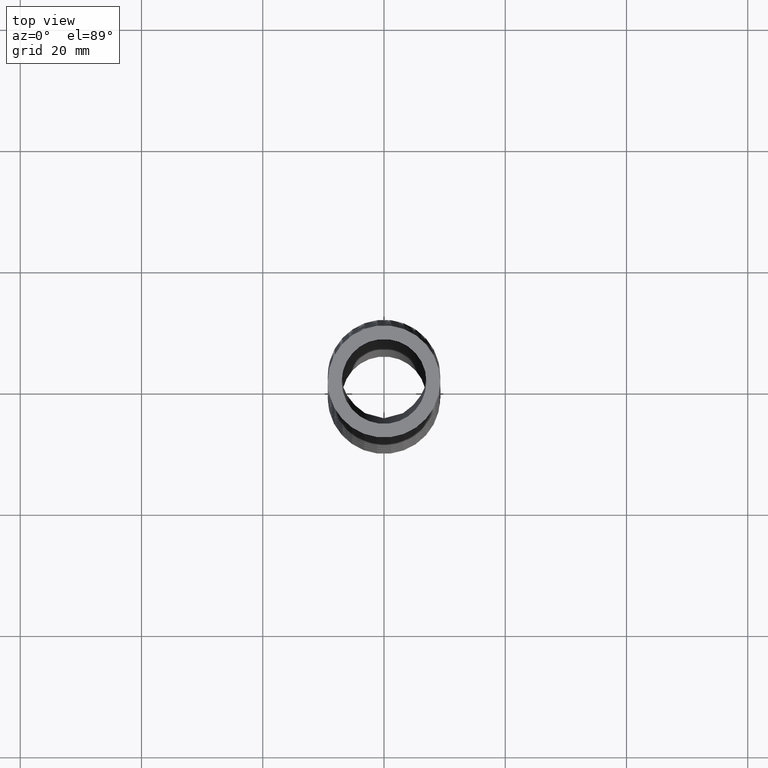
[diagram: clean part render]
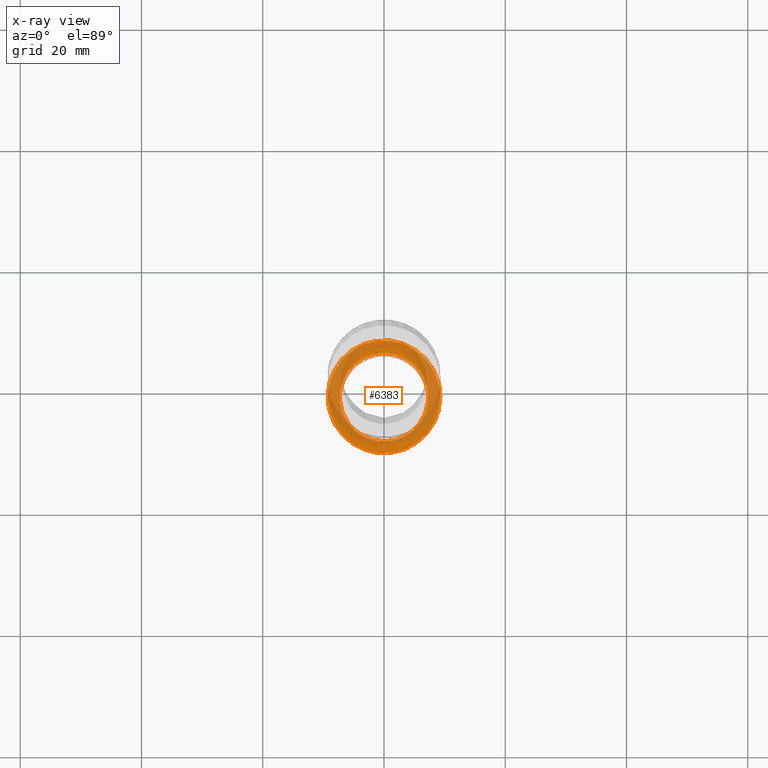
[diagram: x-ray — body ghosted, one internal face saturated and labeled with its STEP entity id]
A machine part, top view, then the same camera in x-ray: the body is ghosted and one INTERNAL B-rep face — a face not visible from any outside direction — is saturated and labeled: STEP entity #6383.
In plain terms, the highlighted planar face has unit normal (0, -0, 1).
Its self-contained STEP definition (entity closure, byte-faithful):
#79 = VERTEX_POINT ( 'NONE', #1841 ) ;
#81 = EDGE_CURVE ( 'NONE', #496, #79, #1840, .T. ) ;
#496 = VERTEX_POINT ( 'NONE', #4305 ) ;
#1836 = DIRECTION ( 'NONE',  ( 0.0000000000000000000, -1.000000000000000000, 0.0000000000000000000 ) ) ;
#1837 = DIRECTION ( 'NONE',  ( 0.0000000000000000000, -1.734723475976807100E-018, 1.000000000000000000 ) ) ;
#1838 = CARTESIAN_POINT ( 'NONE',  ( 0.0000000000000000000, -0.02457738614895083100, -4.485597076654619800 ) ) ;
#1839 = AXIS2_PLACEMENT_3D ( 'NONE', #1838, #1837, #1836 ) ;
#1840 = CIRCLE ( 'NONE', #1839, 0.2869999999999999800 ) ;
#1841 = CARTESIAN_POINT ( 'NONE',  ( 3.514736313552903300E-017, 0.2624226138510492000, -4.485597076654619800 ) ) ;
#4305 = CARTESIAN_POINT ( 'NONE',  ( 0.0000000000000000000, -0.3115773861489508100, -4.485597076654619800 ) ) ;
#6199 = VERTEX_POINT ( 'NONE', #8734 ) ;
#6207 = EDGE_CURVE ( 'NONE', #6199, #6218, #8834, .T. ) ;
#6218 = VERTEX_POINT ( 'NONE', #8849 ) ;
#6260 = EDGE_CURVE ( 'NONE', #6218, #6199, #9186, .T. ) ;
#6372 = EDGE_CURVE ( 'NONE', #79, #496, #10289, .T. ) ;
#6383 = ADVANCED_FACE ( 'NONE', ( #10316, #10315 ), #10352, .T. ) ;
#6385 = ORIENTED_EDGE ( 'NONE', *, *, #6260, .F. ) ;
#6387 = EDGE_LOOP ( 'NONE', ( #6395, #6393 ) ) ;
#6393 = ORIENTED_EDGE ( 'NONE', *, *, #6372, .F. ) ;
#6395 = ORIENTED_EDGE ( 'NONE', *, *, #81, .F. ) ;
#6399 = EDGE_LOOP ( 'NONE', ( #6401, #6385 ) ) ;
#6401 = ORIENTED_EDGE ( 'NONE', *, *, #6207, .F. ) ;
#8734 = CARTESIAN_POINT ( 'NONE',  ( 0.3649999999999999900, -0.02211535572236392900, -4.485597076654619800 ) ) ;
#8818 = CARTESIAN_POINT ( 'NONE',  ( 0.1829207075180287500, -0.3399175977771706800, -4.485597076654615400 ) ) ;
#8819 = CARTESIAN_POINT ( 'NONE',  ( 0.2126011734852165700, -0.3200305734817997500, -4.485597076654616300 ) ) ;
#8820 = CARTESIAN_POINT ( 'NONE',  ( 0.2221857721140397800, -0.3129085194324374200, -4.485597076654620700 ) ) ;
#8821 = CARTESIAN_POINT ( 'NONE',  ( 0.2407230555139190900, -0.2976557592512324400, -4.485597076654621600 ) ) ;
#8822 = CARTESIAN_POINT ( 'NONE',  ( 0.2496904616355107300, -0.2895004753201047000, -4.485597076654617200 ) ) ;
#8823 = CARTESIAN_POINT ( 'NONE',  ( 0.2750499205956761200, -0.2640469861544178000, -4.485597076654618000 ) ) ;
#8824 = CARTESIAN_POINT ( 'NONE',  ( 0.2901213646156992100, -0.2456162305054245500, -4.485597076654622500 ) ) ;
#8825 = CARTESIAN_POINT ( 'NONE',  ( 0.3166296148651553400, -0.2058591452024994800, -4.485597076654622500 ) ) ;
#8826 = CARTESIAN_POINT ( 'NONE',  ( 0.3280760588850031900, -0.1843815838602762500, -4.485597076654619800 ) ) ;
#8827 = CARTESIAN_POINT ( 'NONE',  ( 0.3462865454396855700, -0.1403026330853649200, -4.485597076654619800 ) ) ;
#8828 = CARTESIAN_POINT ( 'NONE',  ( 0.3532136261972311200, -0.1175053078511673100, -4.485597076654621600 ) ) ;
#8829 = CARTESIAN_POINT ( 'NONE',  ( 0.3602617992534176700, -0.08214637933669370600, -4.485597076654621600 ) ) ;
#8830 = CARTESIAN_POINT ( 'NONE',  ( 0.3620426615490488500, -0.07016984010970588000, -4.485597076654617200 ) ) ;
#8831 = CARTESIAN_POINT ( 'NONE',  ( 0.3644061869404030000, -0.04621627252101456100, -4.485597076654618000 ) ) ;
#8832 = CARTESIAN_POINT ( 'NONE',  ( 0.3649999999999999900, -0.03419053505616685000, -4.485597076654619800 ) ) ;
#8833 = CARTESIAN_POINT ( 'NONE',  ( 0.3649999999999999900, -0.02211535572236392900, -4.485597076654619800 ) ) ;
#8834 = B_SPLINE_CURVE_WITH_KNOTS ( 'NONE', 3,
 ( #8833, #8832, #8831, #8830, #8829, #8828, #8827, #8826, #8825, #8824, #8823, #8822, #8821, #8820, #8819, #8818, #8885, #8884, #8883, #8882, #8881, #8880, #8879, #8878, #8877, #8876, #8875, #8874, #8873, #8872, #8871, #8870, #8869, #8868, #8867, #8866, #8865, #8864, #8863, #8862, #8861, #8860, #8859, #8858, #8857 ),
 .UNSPECIFIED., .F., .F.,
 ( 4, 2, 2, 2, 2, 2, 2, 2, 2, 2, 2, 2, 2, 2, 2, 2, 1, 2, 2, 2, 2, 2, 4 ),
 ( 0.0000000000000000000, 0.0009169557540528720100, 0.001833911508105744000, 0.003667823016211485500, 0.005501734524317227100, 0.007335646032422966600, 0.008252601786475837600, 0.009169557540528706900, 0.01100346904863444700, 0.01283738055674018900, 0.01375433631079305900, 0.01467129206484593000, 0.01650520357295167200, 0.01833911508105741000, 0.02017302658916315200, 0.02108998234321602200, 0.02200693809726889100, 0.02292389385132176000, 0.02384084960537463000, 0.02567476111348037200, 0.02659171686753324100, 0.02750867262158611400, 0.02934258412969185200 ),
 .UNSPECIFIED. ) ;
#8849 = CARTESIAN_POINT ( 'NONE',  ( -0.3649999999999999900, -0.02211535572236388700, -4.485597076654619800 ) ) ;
#8857 = CARTESIAN_POINT ( 'NONE',  ( -0.3649999999999999900, -0.02211535572236388700, -4.485597076654619800 ) ) ;
#8858 = CARTESIAN_POINT ( 'NONE',  ( -0.3649999999999999400, -0.04606293732939380900, -4.485597076654617200 ) ) ;
#8859 = CARTESIAN_POINT ( 'NONE',  ( -0.3626810224802877700, -0.06975980911005393000, -4.485597076654622500 ) ) ;
#8860 = CARTESIAN_POINT ( 'NONE',  ( -0.3557438248035104700, -0.1049311856235909000, -4.485597076654622500 ) ) ;
#8861 = CARTESIAN_POINT ( 'NONE',  ( -0.3528355881342215000, -0.1166412425532886300, -4.485597076654619800 ) ) ;
#8862 = CARTESIAN_POINT ( 'NONE',  ( -0.3458815574647441900, -0.1397007674559351500, -4.485597076654621600 ) ) ;
#8863 = CARTESIAN_POINT ( 'NONE',  ( -0.3418646786792970400, -0.1509736090005864000, -4.485597076654619800 ) ) ;
#8864 = CARTESIAN_POINT ( 'NONE',  ( -0.3282416410954343000, -0.1840438282093541100, -4.485597076654620700 ) ) ;
#8865 = CARTESIAN_POINT ( 'NONE',  ( -0.3170780528105867600, -0.2051000254968302300, -4.485597076654622500 ) ) ;
#8866 = CARTESIAN_POINT ( 'NONE',  ( -0.2971228456721858300, -0.2351567664991852400, -4.485597076654620700 ) ) ;
#8867 = CARTESIAN_POINT ( 'NONE',  ( -0.2899422239872414000, -0.2448903107156686100, -4.485597076654618000 ) ) ;
#8868 = CARTESIAN_POINT ( 'NONE',  ( -0.2748156009252804000, -0.2634209196257469300, -4.485597076654618000 ) ) ;
#8869 = CARTESIAN_POINT ( 'NONE',  ( -0.2588538918634881200, -0.2811246416010686500, -4.485597076654622500 ) ) ;
#8870 = CARTESIAN_POINT ( 'NONE',  ( -0.2412433123682817300, -0.2971956821294830000, -4.485597076654615400 ) ) ;
#8871 = CARTESIAN_POINT ( 'NONE',  ( -0.2227950687871961800, -0.3124372829493300400, -4.485597076654614500 ) ) ;
#8872 = CARTESIAN_POINT ( 'NONE',  ( -0.2130950676927770600, -0.3196796039234652300, -4.485597076654619800 ) ) ;
#8873 = CARTESIAN_POINT ( 'NONE',  ( -0.1831667629863992000, -0.3397916014395744900, -4.485597076654621600 ) ) ;
#8874 = CARTESIAN_POINT ( 'NONE',  ( -0.1621734508603406300, -0.3510649760830423800, -4.485597076654619800 ) ) ;
#8875 = CARTESIAN_POINT ( 'NONE',  ( -0.1181496571665863600, -0.3694348426224412000, -4.485597076654620700 ) ) ;
#8876 = CARTESIAN_POINT ( 'NONE',  ( -0.09487001141320444700, -0.3765515350105072000, -4.485597076654618900 ) ) ;
#8877 = CARTESIAN_POINT ( 'NONE',  ( -0.04802438713926445600, -0.3859333131389300900, -4.485597076654618900 ) ) ;
#8878 = CARTESIAN_POINT ( 'NONE',  ( -0.02432968867672465400, -0.3883030034773890000, -4.485597076654617200 ) ) ;
#8879 = CARTESIAN_POINT ( 'NONE',  ( 0.01162453852358952800, -0.3883386031089771700, -4.485597076654618000 ) ) ;
#8880 = CARTESIAN_POINT ( 'NONE',  ( 0.02373600582494618500, -0.3877498489911924700, -4.485597076654622500 ) ) ;
#8881 = CARTESIAN_POINT ( 'NONE',  ( 0.04760990393654426800, -0.3853975444797734200, -4.485597076654621600 ) ) ;
#8882 = CARTESIAN_POINT ( 'NONE',  ( 0.05941599001605765000, -0.3836397178369835800, -4.485597076654618900 ) ) ;
#8883 = CARTESIAN_POINT ( 'NONE',  ( 0.09445026111931773000, -0.3766594489611210800, -4.485597076654619800 ) ) ;
#8884 = CARTESIAN_POINT ( 'NONE',  ( 0.1173230903520424300, -0.3697367364236441900, -4.485597076654618000 ) ) ;
#8885 = CARTESIAN_POINT ( 'NONE',  ( 0.1619072985823454000, -0.3512180009282828100, -4.485597076654618900 ) ) ;
#9186 = B_SPLINE_CURVE_WITH_KNOTS ( 'NONE', 3,
 ( #9251, #9250, #9249, #9248, #9247, #9246, #9245, #9244, #9243, #9242, #9241, #9240, #9239, #9238, #9237, #9236, #9235, #9234, #9233, #9232, #9231, #9230, #9229, #9228, #9227, #9226, #9225, #9224, #9223, #9222, #9221, #9220, #9219, #9218, #9217, #9216, #9215, #9214, #9213, #9212, #9211, #9210, #9209, #9208, #9207, #9206, #9205 ),
 .UNSPECIFIED., .F., .F.,
 ( 4, 2, 2, 2, 2, 2, 2, 2, 2, 2, 2, 1, 2, 2, 2, 2, 2, 2, 2, 2, 2, 2, 2, 4 ),
 ( 0.02934258412969185200, 0.03025958320887313700, 0.03117658228805442200, 0.03301058044641699100, 0.03484457860477956100, 0.03576157768396084900, 0.03667857676314213000, 0.03851257492150470000, 0.04034657307986727600, 0.04218057123822984600, 0.04309757031741112700, 0.04401456939659241500, 0.04493156847577370300, 0.04584856755495499100, 0.04768256571331755400, 0.04859956479249884200, 0.04951656387168011700, 0.05135056203004267900, 0.05226756110922396700, 0.05318456018840524200, 0.05501855834676781100, 0.05685255650513036700, 0.05776955558431165500, 0.05868655466349293600 ),
 .UNSPECIFIED. ) ;
#9205 = CARTESIAN_POINT ( 'NONE',  ( 0.3649999999999999900, -0.02211535572236392900, -4.485597076654619800 ) ) ;
#9206 = CARTESIAN_POINT ( 'NONE',  ( 0.3650000000000001600, -0.01003960584991408500, -4.485597076654620700 ) ) ;
#9207 = CARTESIAN_POINT ( 'NONE',  ( 0.3644006360231651900, 0.002044329606665735100, -4.485597076654621600 ) ) ;
#9208 = CARTESIAN_POINT ( 'NONE',  ( 0.3620467092174455300, 0.02589541773346424100, -4.485597076654620700 ) ) ;
#9209 = CARTESIAN_POINT ( 'NONE',  ( 0.3602942769053810700, 0.03769666980832722700, -4.485597076654622500 ) ) ;
#9210 = CARTESIAN_POINT ( 'NONE',  ( 0.3533429619347887000, 0.07273454550185266800, -4.485597076654622500 ) ) ;
#9211 = CARTESIAN_POINT ( 'NONE',  ( 0.3464367913695216600, 0.09568095501723723800, -4.485597076654619800 ) ) ;
#9212 = CARTESIAN_POINT ( 'NONE',  ( 0.3280424830709330300, 0.1402566293076961100, -4.485597076654618900 ) ) ;
#9213 = CARTESIAN_POINT ( 'NONE',  ( 0.3168123770809129200, 0.1613005881301610200, -4.485597076654620700 ) ) ;
#9214 = CARTESIAN_POINT ( 'NONE',  ( 0.2970189170037398400, 0.1910625840647671400, -4.485597076654621600 ) ) ;
#9215 = CARTESIAN_POINT ( 'NONE',  ( 0.2899261314858861400, 0.2006804006644751500, -4.485597076654618000 ) ) ;
#9216 = CARTESIAN_POINT ( 'NONE',  ( 0.2747240300981760300, 0.2192940613980565700, -4.485597076654618000 ) ) ;
#9217 = CARTESIAN_POINT ( 'NONE',  ( 0.2666091417161310900, 0.2282829226334403000, -4.485597076654619800 ) ) ;
#9218 = CARTESIAN_POINT ( 'NONE',  ( 0.2412693954673339500, 0.2537194923060876500, -4.485597076654619800 ) ) ;
#9219 = CARTESIAN_POINT ( 'NONE',  ( 0.2228948423875846700, 0.2688652997162434000, -4.485597076654620700 ) ) ;
#9220 = CARTESIAN_POINT ( 'NONE',  ( 0.1931119802945118800, 0.2888674376400761100, -4.485597076654619800 ) ) ;
#9221 = CARTESIAN_POINT ( 'NONE',  ( 0.1827550399319339300, 0.2951078823356899100, -4.485597076654619800 ) ) ;
#9222 = CARTESIAN_POINT ( 'NONE',  ( 0.1615547748317716900, 0.3064849025441837000, -4.485597076654618900 ) ) ;
#9223 = CARTESIAN_POINT ( 'NONE',  ( 0.1507496345982132500, 0.3116094138576830900, -4.485597076654619800 ) ) ;
#9224 = CARTESIAN_POINT ( 'NONE',  ( 0.1177357712499456600, 0.3253365659462949500, -4.485597076654620700 ) ) ;
#9225 = CARTESIAN_POINT ( 'NONE',  ( 0.09493438649608820800, 0.3323087290625573700, -4.485597076654618900 ) ) ;
#9226 = CARTESIAN_POINT ( 'NONE',  ( 0.05950488419919428000, 0.3393901914735943400, -4.485597076654618000 ) ) ;
#9227 = CARTESIAN_POINT ( 'NONE',  ( 0.04756749245414505800, 0.3411622428650032400, -4.485597076654617200 ) ) ;
#9228 = CARTESIAN_POINT ( 'NONE',  ( 0.02378212332739734100, 0.3435058373896744400, -4.485597076654618900 ) ) ;
#9229 = CARTESIAN_POINT ( 'NONE',  ( -1.649301397602888400E-005, 0.3446703670629060500, -4.485597076654617200 ) ) ;
#9230 = CARTESIAN_POINT ( 'NONE',  ( -0.02384131084667538400, 0.3435028398962825500, -4.485597076654618000 ) ) ;
#9231 = CARTESIAN_POINT ( 'NONE',  ( -0.04767946456862153000, 0.3411483554169995600, -4.485597076654619800 ) ) ;
#9232 = CARTESIAN_POINT ( 'NONE',  ( -0.05966896838963391100, 0.3393616619671452900, -4.485597076654619800 ) ) ;
#9233 = CARTESIAN_POINT ( 'NONE',  ( -0.09498136357857676900, 0.3322907376214412300, -4.485597076654621600 ) ) ;
#9234 = CARTESIAN_POINT ( 'NONE',  ( -0.1177612270344247900, 0.3253297377712926500, -4.485597076654617200 ) ) ;
#9235 = CARTESIAN_POINT ( 'NONE',  ( -0.1618266990720340400, 0.3069998098885588500, -4.485597076654617200 ) ) ;
#9236 = CARTESIAN_POINT ( 'NONE',  ( -0.1832779518083197900, 0.2954770741714440300, -4.485597076654618900 ) ) ;
#9237 = CARTESIAN_POINT ( 'NONE',  ( -0.2229091287522075000, 0.2688505774201167500, -4.485597076654620700 ) ) ;
#9238 = CARTESIAN_POINT ( 'NONE',  ( -0.2412886365618154000, 0.2537069551964644100, -4.485597076654616300 ) ) ;
#9239 = CARTESIAN_POINT ( 'NONE',  ( -0.2666768108444497700, 0.2282115906913685100, -4.485597076654615400 ) ) ;
#9240 = CARTESIAN_POINT ( 'NONE',  ( -0.2747984140901421600, 0.2192073326730868100, -4.485597076654618900 ) ) ;
#9241 = CARTESIAN_POINT ( 'NONE',  ( -0.2899583404322841900, 0.2006365848630315400, -4.485597076654620700 ) ) ;
#9242 = CARTESIAN_POINT ( 'NONE',  ( -0.2970393978185057500, 0.1910333999055167900, -4.485597076654619800 ) ) ;
#9243 = CARTESIAN_POINT ( 'NONE',  ( -0.3168170726004346200, 0.1612902995062165400, -4.485597076654621600 ) ) ;
#9244 = CARTESIAN_POINT ( 'NONE',  ( -0.3280836118487694400, 0.1401747937914498100, -4.485597076654625100 ) ) ;
#9245 = CARTESIAN_POINT ( 'NONE',  ( -0.3464747343045506700, 0.09557109602743886500, -4.485597076654624300 ) ) ;
#9246 = CARTESIAN_POINT ( 'NONE',  ( -0.3533456670014764600, 0.07272644963206491300, -4.485597076654617200 ) ) ;
#9247 = CARTESIAN_POINT ( 'NONE',  ( -0.3602977764494880200, 0.03767625810555340300, -4.485597076654616300 ) ) ;
#9248 = CARTESIAN_POINT ( 'NONE',  ( -0.3620519824197464000, 0.02586136295907600100, -4.485597076654621600 ) ) ;
#9249 = CARTESIAN_POINT ( 'NONE',  ( -0.3644068186302956100, 0.001962214345266926000, -4.485597076654620700 ) ) ;
#9250 = CARTESIAN_POINT ( 'NONE',  ( -0.3649999999999999900, -0.01014099917069590500, -4.485597076654618000 ) ) ;
#9251 = CARTESIAN_POINT ( 'NONE',  ( -0.3649999999999999900, -0.02211535572236388700, -4.485597076654619800 ) ) ;
#10285 = DIRECTION ( 'NONE',  ( 0.0000000000000000000, -1.000000000000000000, 0.0000000000000000000 ) ) ;
#10286 = DIRECTION ( 'NONE',  ( 0.0000000000000000000, -1.734723475976807100E-018, 1.000000000000000000 ) ) ;
#10287 = CARTESIAN_POINT ( 'NONE',  ( 0.0000000000000000000, -0.02457738614895083100, -4.485597076654619800 ) ) ;
#10288 = AXIS2_PLACEMENT_3D ( 'NONE', #10287, #10286, #10285 ) ;
#10289 = CIRCLE ( 'NONE', #10288, 0.2869999999999999800 ) ;
#10315 = FACE_BOUND ( 'NONE', #6387, .T. ) ;
#10316 = FACE_OUTER_BOUND ( 'NONE', #6399, .T. ) ;
#10347 = DIRECTION ( 'NONE',  ( 0.0000000000000000000, -1.000000000000000000, -1.734723475976807100E-018 ) ) ;
#10348 = DIRECTION ( 'NONE',  ( 0.0000000000000000000, -1.734723475976807100E-018, 1.000000000000000000 ) ) ;
#10349 = CARTESIAN_POINT ( 'NONE',  ( 0.0000000000000000000, 0.3624226138510491200, -4.485597076654619800 ) ) ;
#10350 = AXIS2_PLACEMENT_3D ( 'NONE', #10349, #10348, #10347 ) ;
#10352 = PLANE ( 'NONE',  #10350 ) ;